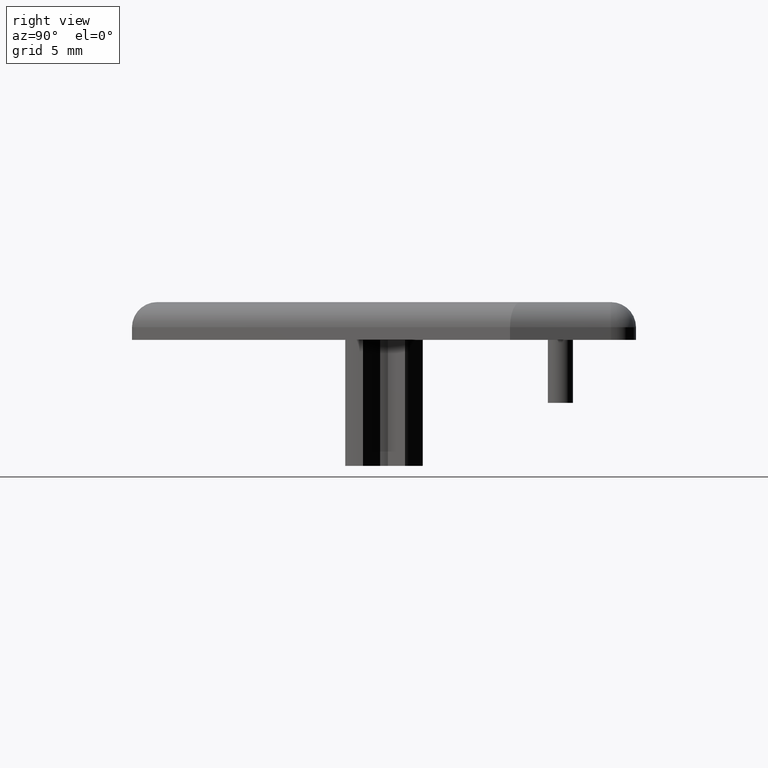
[diagram: clean part render]
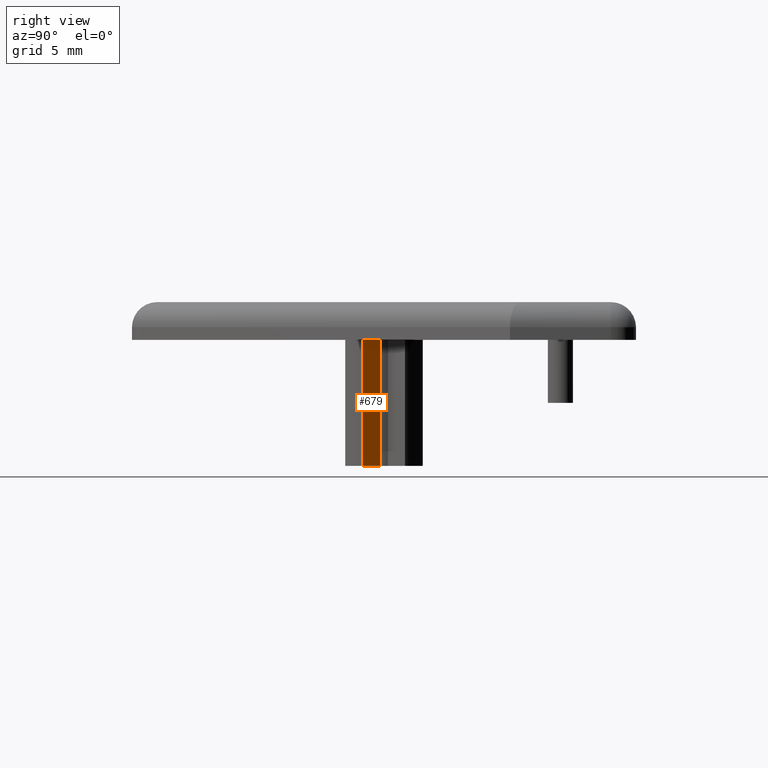
[diagram: same view with one face highlighted and labeled with its STEP entity id]
A machine part, right view. The second image highlights one B-rep face of the part: STEP entity #679.
In plain terms, the highlighted planar face has unit normal (0.7071, 0.7071, 0).
Its self-contained STEP definition (entity closure, byte-faithful):
#23=PLANE($,#730);
#45=FACE_OUTER_BOUND($,#86,.T.);
#86=EDGE_LOOP($,(#473,#474,#475,#476));
#134=LINE($,#1055,#198);
#135=LINE($,#1058,#199);
#136=LINE($,#1060,#200);
#137=LINE($,#1061,#201);
#198=VECTOR($,#831,10.);
#199=VECTOR($,#834,1.91796130461518);
#200=VECTOR($,#835,1.91796130461518);
#201=VECTOR($,#836,10.);
#299=VERTEX_POINT($,#1051);
#300=VERTEX_POINT($,#1053);
#301=VERTEX_POINT($,#1057);
#302=VERTEX_POINT($,#1059);
#367=EDGE_CURVE($,#299,#300,#134,.T.);
#368=EDGE_CURVE($,#299,#301,#135,.T.);
#369=EDGE_CURVE($,#302,#300,#136,.T.);
#370=EDGE_CURVE($,#301,#302,#137,.T.);
#473=ORIENTED_EDGE($,*,*,#368,.F.);
#474=ORIENTED_EDGE($,*,*,#367,.T.);
#475=ORIENTED_EDGE($,*,*,#369,.F.);
#476=ORIENTED_EDGE($,*,*,#370,.F.);
#679=ADVANCED_FACE($,(#45),#23,.T.);
#730=AXIS2_PLACEMENT_3D($,#1056,#832,#833);
#831=DIRECTION($,(0.,0.,-1.));
#832=DIRECTION('center_axis',(0.707106781186548,0.707106781186548,0.));
#833=DIRECTION('ref_axis',(0.707106781186548,-0.707106781186548,0.));
#834=DIRECTION($,(-0.707106781186547,0.707106781186547,0.));
#835=DIRECTION($,(0.707106781186548,-0.707106781186548,0.));
#836=DIRECTION($,(0.,0.,-1.));
#1051=CARTESIAN_POINT('',(23.0788150263128,-21.6646014639397,0.));
#1053=CARTESIAN_POINT('',(23.0788150263128,-21.6646014639397,-10.));
#1055=CARTESIAN_POINT($,(23.0788150263128,-21.6646014639397,0.));
#1056=CARTESIAN_POINT('Origin',(21.722611581766,-20.3083980193929,0.));
#1057=CARTESIAN_POINT('',(21.722611581766,-20.3083980193929,0.));
#1058=CARTESIAN_POINT($,(19.3266279978782,-17.9124144355051,0.));
#1059=CARTESIAN_POINT('',(21.722611581766,-20.3083980193929,-10.));
#1060=CARTESIAN_POINT($,(21.722611581766,-20.3083980193929,-10.));
#1061=CARTESIAN_POINT($,(21.722611581766,-20.3083980193929,0.));